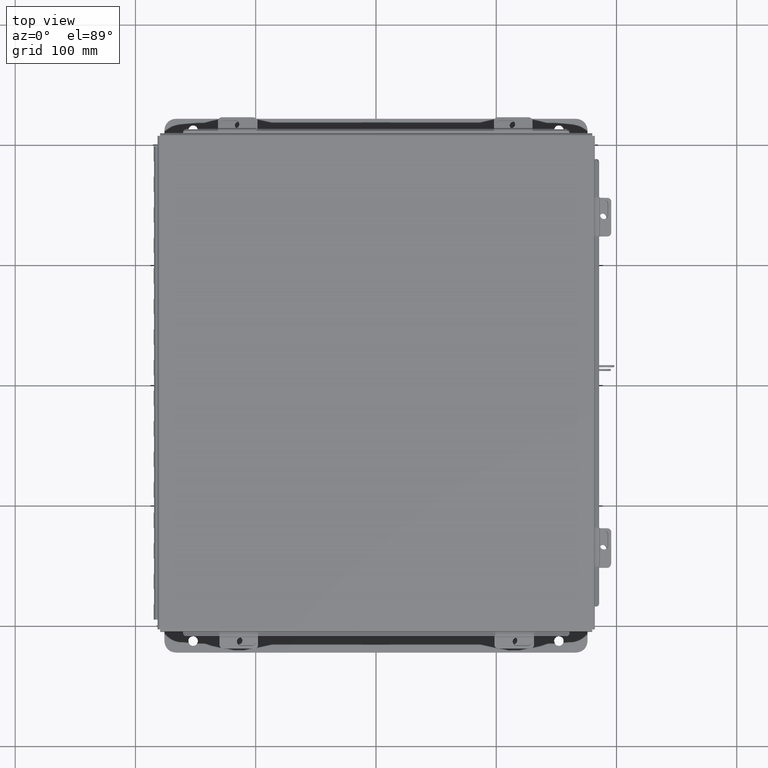
[diagram: clean part render]
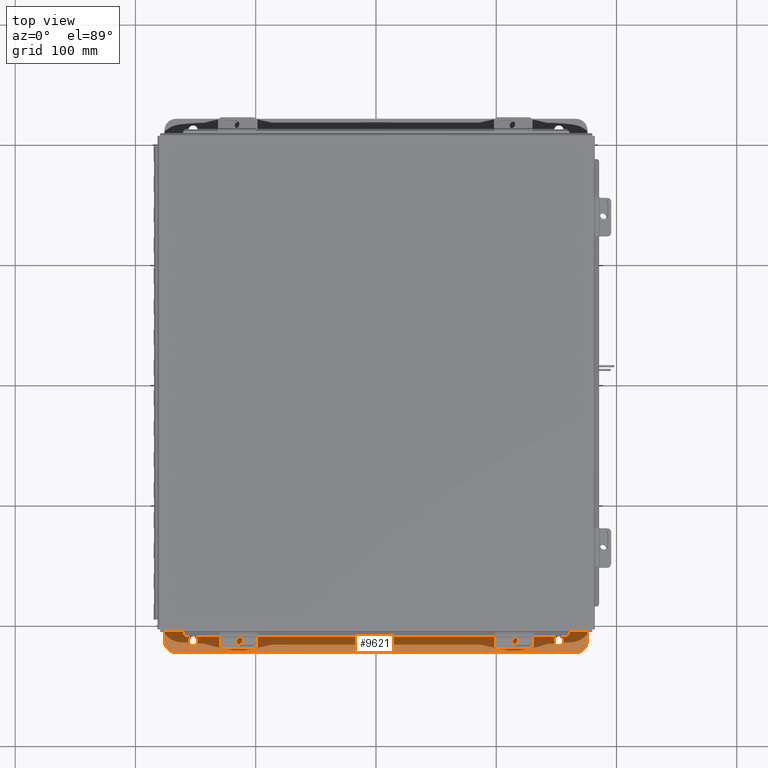
[diagram: same view with one face highlighted and labeled with its STEP entity id]
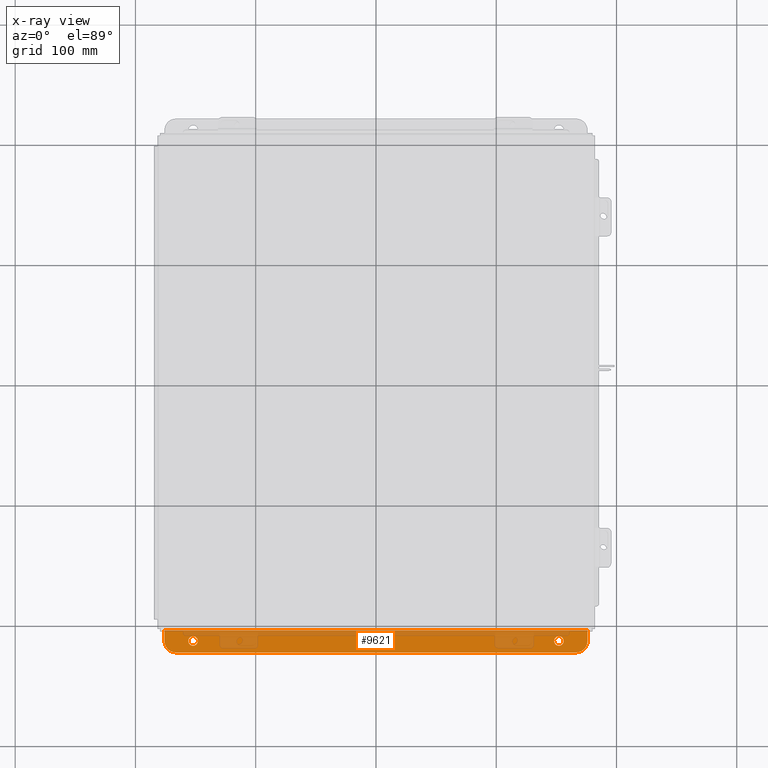
[diagram: x-ray of the same camera — body ghosted, the highlighted face saturated]
A machine part, top view. The second image highlights one B-rep face of the part: STEP entity #9621.
The next image is the same camera in x-ray: the body ghosted, the highlighted face saturated — about 35% of this face is hidden behind the body in this view.
In plain terms, the highlighted planar face has unit normal (0, -0, 1).
Its self-contained STEP definition (entity closure, byte-faithful):
#280 = DIRECTION ( 'NONE',  ( -0.0000000000000000000, -3.702694488566362300E-015, -1.000000000000000000 ) ) ;
#421 = ORIENTED_EDGE ( 'NONE', *, *, #1871, .T. ) ;
#596 = CARTESIAN_POINT ( 'NONE',  ( -5.987799999999991100, 0.2067999999999919300, -3.112299999999995800 ) ) ;
#1014 = CARTESIAN_POINT ( 'NONE',  ( 5.987800000000006200, 0.3628000000000008400, -3.112300000000000700 ) ) ;
#1364 = VERTEX_POINT ( 'NONE', #16573 ) ;
#1584 = ORIENTED_EDGE ( 'NONE', *, *, #11890, .T. ) ;
#1760 = ORIENTED_EDGE ( 'NONE', *, *, #11518, .T. ) ;
#1786 = CARTESIAN_POINT ( 'NONE',  ( 6.925300000000007100, 0.3627999999999920700, -3.112300000000000700 ) ) ;
#1812 = LINE ( 'NONE', #15797, #9143 ) ;
#1871 = EDGE_CURVE ( 'NONE', #1364, #18734, #4875, .T. ) ;
#1907 = AXIS2_PLACEMENT_3D ( 'NONE', #2823, #13702, #4380 ) ;
#2394 = ORIENTED_EDGE ( 'NONE', *, *, #8443, .T. ) ;
#2580 = DIRECTION ( 'NONE',  ( 0.0000000000000000000, -1.000000000000000000, 3.502369222646487400E-015 ) ) ;
#2637 = CARTESIAN_POINT ( 'NONE',  ( -5.987799999999991100, 0.3627999999999920700, -3.112299999999996300 ) ) ;
#2699 = VERTEX_POINT ( 'NONE', #596 ) ;
#2823 = CARTESIAN_POINT ( 'NONE',  ( 6.550300000000007100, 0.3627999999999920700, -3.112299999999996300 ) ) ;
#2869 = AXIS2_PLACEMENT_3D ( 'NONE', #9597, #280, #11165 ) ;
#3186 = CIRCLE ( 'NONE', #6523, 0.1560000000000001700 ) ;
#3281 = CARTESIAN_POINT ( 'NONE',  ( -6.925299999999992000, 0.3628000000000008400, -3.112299999999996300 ) ) ;
#3283 = FACE_BOUND ( 'NONE', #15368, .T. ) ;
#4189 = DIRECTION ( 'NONE',  ( 0.0000000000000000000, -1.000000000000000000, 3.502369222646487400E-015 ) ) ;
#4204 = ORIENTED_EDGE ( 'NONE', *, *, #12898, .T. ) ;
#4227 = DIRECTION ( 'NONE',  ( 0.0000000000000000000, 3.702694488566362300E-015, 1.000000000000000000 ) ) ;
#4380 = DIRECTION ( 'NONE',  ( 0.0000000000000000000, -1.000000000000000000, 4.370956789862820400E-015 ) ) ;
#4875 = CIRCLE ( 'NONE', #9439, 0.3750000000000000600 ) ;
#5361 = EDGE_CURVE ( 'NONE', #16343, #8178, #1812, .T. ) ;
#6045 = CARTESIAN_POINT ( 'NONE',  ( 6.925300000000007100, 0.7377999999999923500, -3.112299999999997600 ) ) ;
#6143 = CARTESIAN_POINT ( 'NONE',  ( -2.035385365534024800E-024, -1.092739197465705300E-014, -3.112299999999999400 ) ) ;
#6325 = VERTEX_POINT ( 'NONE', #16252 ) ;
#6523 = AXIS2_PLACEMENT_3D ( 'NONE', #1014, #11919, #2580 ) ;
#6611 = AXIS2_PLACEMENT_3D ( 'NONE', #6143, #18600, #9302 ) ;
#6823 = DIRECTION ( 'NONE',  ( -1.000000000000000000, -4.910036603141682400E-031, 0.0000000000000000000 ) ) ;
#7617 = CIRCLE ( 'NONE', #13122, 0.1560000000000001700 ) ;
#7631 = DIRECTION ( 'NONE',  ( 1.000000000000000000, 4.910036603141682400E-031, -0.0000000000000000000 ) ) ;
#7646 = CARTESIAN_POINT ( 'NONE',  ( -6.550299999999989400, 0.3628000000000008400, -3.112300000000000700 ) ) ;
#7669 = PLANE ( 'NONE',  #6611 ) ;
#7786 = ORIENTED_EDGE ( 'NONE', *, *, #5361, .F. ) ;
#7867 = EDGE_CURVE ( 'NONE', #6325, #2699, #7617, .T. ) ;
#8178 = VERTEX_POINT ( 'NONE', #14792 ) ;
#8429 = EDGE_LOOP ( 'NONE', ( #4204, #1760 ) ) ;
#8443 = EDGE_CURVE ( 'NONE', #18778, #15558, #14879, .T. ) ;
#8495 = VERTEX_POINT ( 'NONE', #13832 ) ;
#8757 = AXIS2_PLACEMENT_3D ( 'NONE', #2637, #13518, #4189 ) ;
#8888 = LINE ( 'NONE', #6045, #16665 ) ;
#9143 = VECTOR ( 'NONE', #6823, 39.37007874015748100 ) ;
#9254 = DIRECTION ( 'NONE',  ( -0.0000000000000000000, -3.702694488566362300E-015, -1.000000000000000000 ) ) ;
#9302 = DIRECTION ( 'NONE',  ( -4.919856193148104900E-031, -1.000000000000000000, 3.702694488566362300E-015 ) ) ;
#9317 = LINE ( 'NONE', #14817, #17080 ) ;
#9439 = AXIS2_PLACEMENT_3D ( 'NONE', #7646, #4227, #18317 ) ;
#9597 = CARTESIAN_POINT ( 'NONE',  ( 5.987800000000006200, 0.3628000000000008400, -3.112300000000000700 ) ) ;
#9616 = ORIENTED_EDGE ( 'NONE', *, *, #12842, .F. ) ;
#9621 = ADVANCED_FACE ( 'NONE', ( #3283, #10617, #18857 ), #7669, .T. ) ;
#10089 = CIRCLE ( 'NONE', #2869, 0.1560000000000001700 ) ;
#10150 = DIRECTION ( 'NONE',  ( 4.919856193148104900E-031, 1.000000000000000000, -3.702694488566362300E-015 ) ) ;
#10617 = FACE_BOUND ( 'NONE', #8429, .T. ) ;
#11165 = DIRECTION ( 'NONE',  ( 0.0000000000000000000, -1.000000000000000000, 3.502369222646487400E-015 ) ) ;
#11307 = EDGE_CURVE ( 'NONE', #1364, #15558, #8888, .T. ) ;
#11518 = EDGE_CURVE ( 'NONE', #19439, #8495, #10089, .T. ) ;
#11890 = EDGE_CURVE ( 'NONE', #2699, #6325, #16640, .T. ) ;
#11919 = DIRECTION ( 'NONE',  ( -0.0000000000000000000, -3.702694488566362300E-015, -1.000000000000000000 ) ) ;
#12430 = CARTESIAN_POINT ( 'NONE',  ( 6.550300000000007100, 0.7377999999999923500, -3.112300000000002100 ) ) ;
#12730 = CARTESIAN_POINT ( 'NONE',  ( 6.925300000000007100, 0.01299999999999136600, -3.112299999999995000 ) ) ;
#12842 = EDGE_CURVE ( 'NONE', #8178, #18734, #9317, .T. ) ;
#12898 = EDGE_CURVE ( 'NONE', #8495, #19439, #3186, .T. ) ;
#13020 = EDGE_CURVE ( 'NONE', #18778, #16343, #18757, .T. ) ;
#13122 = AXIS2_PLACEMENT_3D ( 'NONE', #18556, #9254, #20129 ) ;
#13518 = DIRECTION ( 'NONE',  ( -0.0000000000000000000, -3.702694488566362300E-015, -1.000000000000000000 ) ) ;
#13702 = DIRECTION ( 'NONE',  ( 0.0000000000000000000, 3.702694488566362300E-015, 1.000000000000000000 ) ) ;
#13832 = CARTESIAN_POINT ( 'NONE',  ( 5.987800000000006200, 0.5188000000000010400, -3.112300000000001200 ) ) ;
#14610 = ORIENTED_EDGE ( 'NONE', *, *, #13020, .F. ) ;
#14792 = CARTESIAN_POINT ( 'NONE',  ( -6.925299999999991100, 0.01300000000000010700, -3.112299999999999400 ) ) ;
#14817 = CARTESIAN_POINT ( 'NONE',  ( -6.925299999999992000, 0.7378000000000011200, -3.112300000000002100 ) ) ;
#14879 = CIRCLE ( 'NONE', #1907, 0.3750000000000000600 ) ;
#15157 = CARTESIAN_POINT ( 'NONE',  ( 6.925300000000007100, -8.741913579725642300E-015, -3.112299999999995000 ) ) ;
#15368 = EDGE_LOOP ( 'NONE', ( #18297, #1584 ) ) ;
#15558 = VERTEX_POINT ( 'NONE', #12430 ) ;
#15696 = ORIENTED_EDGE ( 'NONE', *, *, #11307, .F. ) ;
#15797 = CARTESIAN_POINT ( 'NONE',  ( 6.925300000000007100, 0.01299999999999136600, -3.112299999999995000 ) ) ;
#16252 = CARTESIAN_POINT ( 'NONE',  ( -5.987799999999991100, 0.5187999999999922700, -3.112299999999996700 ) ) ;
#16343 = VERTEX_POINT ( 'NONE', #12730 ) ;
#16573 = CARTESIAN_POINT ( 'NONE',  ( -6.550299999999989400, 0.7378000000000011200, -3.112299999999997600 ) ) ;
#16640 = CIRCLE ( 'NONE', #8757, 0.1560000000000001700 ) ;
#16665 = VECTOR ( 'NONE', #7631, 39.37007874015748100 ) ;
#16735 = DIRECTION ( 'NONE',  ( -4.919856193148104900E-031, -1.000000000000000000, 3.702694488566362300E-015 ) ) ;
#17080 = VECTOR ( 'NONE', #10150, 39.37007874015748100 ) ;
#17274 = CARTESIAN_POINT ( 'NONE',  ( 5.987800000000006200, 0.2068000000000006800, -3.112299999999999800 ) ) ;
#17696 = EDGE_LOOP ( 'NONE', ( #15696, #421, #9616, #7786, #14610, #2394 ) ) ;
#18297 = ORIENTED_EDGE ( 'NONE', *, *, #7867, .T. ) ;
#18306 = VECTOR ( 'NONE', #16735, 39.37007874015748100 ) ;
#18317 = DIRECTION ( 'NONE',  ( 0.0000000000000000000, -1.000000000000000000, 4.370956789862820400E-015 ) ) ;
#18556 = CARTESIAN_POINT ( 'NONE',  ( -5.987799999999991100, 0.3627999999999920700, -3.112299999999996300 ) ) ;
#18600 = DIRECTION ( 'NONE',  ( 0.0000000000000000000, 3.702694488566362300E-015, 1.000000000000000000 ) ) ;
#18734 = VERTEX_POINT ( 'NONE', #3281 ) ;
#18757 = LINE ( 'NONE', #15157, #18306 ) ;
#18778 = VERTEX_POINT ( 'NONE', #1786 ) ;
#18857 = FACE_OUTER_BOUND ( 'NONE', #17696, .T. ) ;
#19439 = VERTEX_POINT ( 'NONE', #17274 ) ;
#20129 = DIRECTION ( 'NONE',  ( 0.0000000000000000000, -1.000000000000000000, 3.502369222646487400E-015 ) ) ;